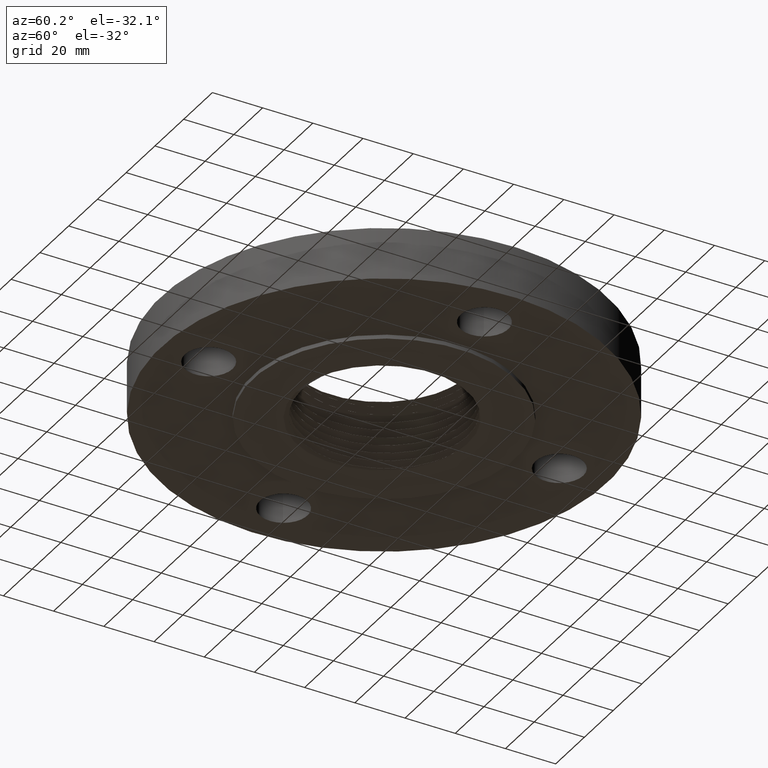
[diagram: clean part render]
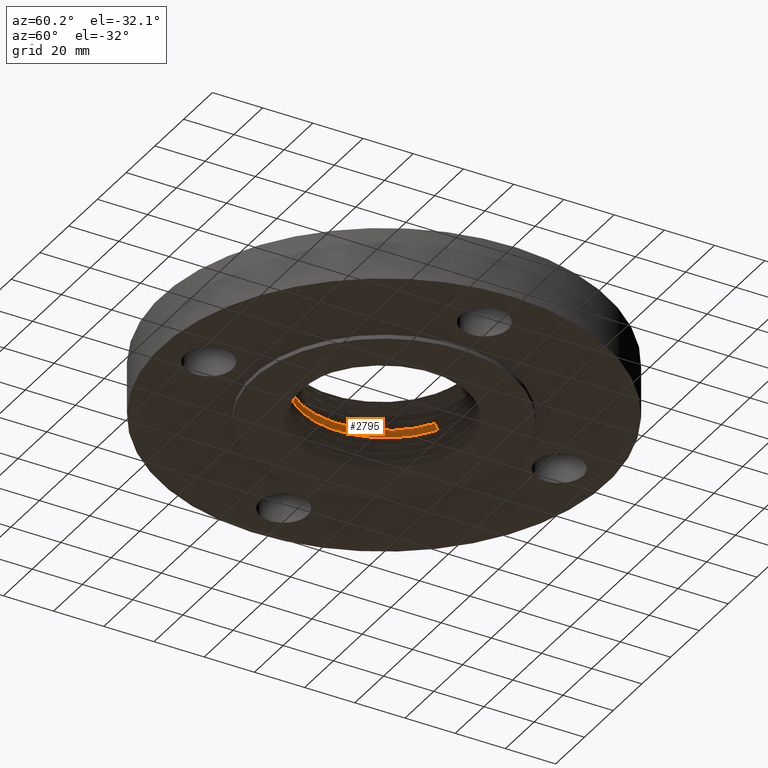
[diagram: same view with one face highlighted and labeled with its STEP entity id]
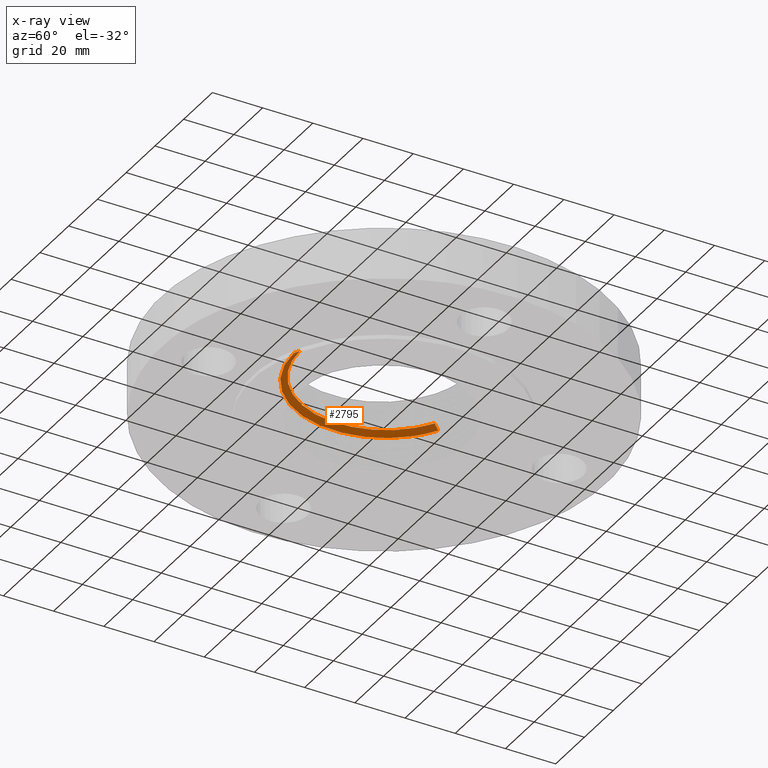
[diagram: x-ray of the same camera — body ghosted, the highlighted face saturated]
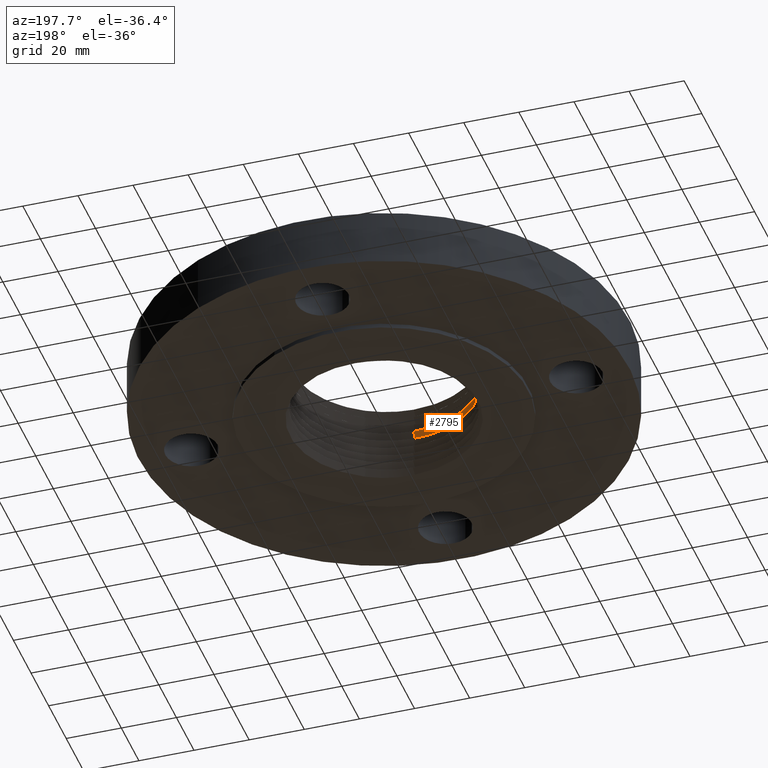
[diagram: same view with one face highlighted and labeled with its STEP entity id]
A machine part, auxiliary view. The second image highlights one B-rep face of the part: STEP entity #2795.
The next image is the same camera in x-ray: the body ghosted, the highlighted face saturated — about 22% of this face is hidden behind the body in this view.
A second angle (auxiliary view) of the same face is appended — the face is thin or edge-on in the first view.
In plain terms, the highlighted face is a freeform B-spline surface patch.
Its self-contained STEP definition (entity closure, byte-faithful):
#2568=CARTESIAN_POINT('Vertex',(-0.630495266804,1.15414180737,0.568125694855)) ;
#2577=CARTESIAN_POINT('Vertex',(-1.23193955731E-005,-1.31677252275,0.620678511132)) ;
#2581=CARTESIAN_POINT('Control Point',(-0.630507034852,1.15413538575,0.568125897654)) ;
#2582=CARTESIAN_POINT('Control Point',(-0.691328089134,1.12094601519,0.569174027407)) ;
#2583=CARTESIAN_POINT('Control Point',(-0.749964412856,1.08375067605,0.570222139983)) ;
#2584=CARTESIAN_POINT('Control Point',(-0.806353782915,1.04256762989,0.571275494122)) ;
#2585=CARTESIAN_POINT('Control Point',(-0.913544779921,0.952696767646,0.573387232895)) ;
#2586=CARTESIAN_POINT('Control Point',(-1.00791419878,0.849474354214,0.5754983099)) ;
#2587=CARTESIAN_POINT('Control Point',(-1.05146404158,0.794921086224,0.576551002271)) ;
#2588=CARTESIAN_POINT('Control Point',(-1.13063661461,0.681218752246,0.578641428166)) ;
#2589=CARTESIAN_POINT('Control Point',(-1.19425175384,0.558145596542,0.580731694866)) ;
#2590=CARTESIAN_POINT('Control Point',(-1.22222430022,0.494179842848,0.581784383536)) ;
#2591=CARTESIAN_POINT('Control Point',(-1.26959506435,0.362269849885,0.583899419875)) ;
#2592=CARTESIAN_POINT('Control Point',(-1.29910153355,0.225236149577,0.58601473647)) ;
#2593=CARTESIAN_POINT('Control Point',(-1.30916445408,0.156133696508,0.587067705397)) ;
#2594=CARTESIAN_POINT('Control Point',(-1.32022799767,0.0177372550305,0.589162412423)) ;
#2595=CARTESIAN_POINT('Control Point',(-1.31305598849,-0.120950586812,0.59125698468)) ;
#2596=CARTESIAN_POINT('Control Point',(-1.30485646666,-0.190219751979,0.592308133153)) ;
#2597=CARTESIAN_POINT('Control Point',(-1.27939744584,-0.327017705173,0.594407222367)) ;
#2598=CARTESIAN_POINT('Control Point',(-1.23619437339,-0.459289861853,0.596506249098)) ;
#2599=CARTESIAN_POINT('Control Point',(-1.21021794001,-0.524106567107,0.597558969003)) ;
#2600=CARTESIAN_POINT('Control Point',(-1.14961759524,-0.650181704689,0.59966943)) ;
#2601=CARTESIAN_POINT('Control Point',(-1.07292071728,-0.767137750498,0.601779229606)) ;
#2602=CARTESIAN_POINT('Control Point',(-1.03082525581,-0.822822603947,0.60283128812)) ;
#2603=CARTESIAN_POINT('Control Point',(-0.940224533113,-0.927651846578,0.604920479918)) ;
#2604=CARTESIAN_POINT('Control Point',(-0.836704228887,-1.01973111444,0.60700951391)) ;
#2605=CARTESIAN_POINT('Control Point',(-0.781644000305,-1.06265706448,0.608061570257)) ;
#2606=CARTESIAN_POINT('Control Point',(-0.665551898642,-1.14118942809,0.610175318006)) ;
#2607=CARTESIAN_POINT('Control Point',(-0.540080842728,-1.20369025433,0.612289343375)) ;
#2608=CARTESIAN_POINT('Control Point',(-0.475617909721,-1.23054405262,0.613341677342)) ;
#2609=CARTESIAN_POINT('Control Point',(-0.344293189412,-1.27551374016,0.615434671588)) ;
#2610=CARTESIAN_POINT('Control Point',(-0.208176236165,-1.30290548926,0.617527533924)) ;
#2611=CARTESIAN_POINT('Control Point',(-0.139064477606,-1.31211659654,0.618577584106)) ;
#2612=CARTESIAN_POINT('Control Point',(-0.0695400507005,-1.31673904575,0.619628056471)) ;
#2613=CARTESIAN_POINT('Control Point',(-1.2319395573E-005,-1.31677252275,0.620678511132)) ;
#2739=CARTESIAN_POINT('Vertex',(-9.22364402319E-007,-1.41349758295,0.555938258801)) ;
#2743=CARTESIAN_POINT('Control Point',(-9.22364402525E-007,-1.41349758295,0.555938258801)) ;
#2744=CARTESIAN_POINT('Control Point',(-1.23193955733E-005,-1.31677252275,0.620678511132)) ;
#2754=CARTESIAN_POINT('Control Point',(-9.22364401971E-007,-1.41349758295,0.555938258801)) ;
#2755=CARTESIAN_POINT('Control Point',(-1.24695084399E-005,-1.31549853518,0.621531219584)) ;
#2756=CARTESIAN_POINT('Control Point',(-0.373416137066,-1.41333310094,0.550682600984)) ;
#2757=CARTESIAN_POINT('Control Point',(-0.347538584299,-1.31533100266,0.616275561753)) ;
#2758=CARTESIAN_POINT('Control Point',(-0.746780176317,-1.28985836126,0.545426133625)) ;
#2759=CARTESIAN_POINT('Control Point',(-0.695008538477,-1.20040233796,0.611019091578)) ;
#2760=CARTESIAN_POINT('Control Point',(-1.06432758772,-1.04315826845,0.540186611587)) ;
#2761=CARTESIAN_POINT('Control Point',(-0.99052300195,-0.970797133419,0.605779571784)) ;
#2762=CARTESIAN_POINT('Control Point',(-1.48817357801,-0.380567737594,0.529670543583)) ;
#2763=CARTESIAN_POINT('Control Point',(-1.38494243898,-0.354147214519,0.595263504787)) ;
#2764=CARTESIAN_POINT('Control Point',(-1.43381054985,0.404115907705,0.519151306735)) ;
#2765=CARTESIAN_POINT('Control Point',(-1.33431796849,0.376092839181,0.584744266846)) ;
#2766=CARTESIAN_POINT('Control Point',(-1.27332512231,0.772868236072,0.513908639776)) ;
#2767=CARTESIAN_POINT('Control Point',(-1.18495244518,0.719249951788,0.579501596176)) ;
#2768=CARTESIAN_POINT('Control Point',(-1.00467457879,1.06013198905,0.508647442873)) ;
#2769=CARTESIAN_POINT('Control Point',(-0.934934597543,0.986565606372,0.574240403459)) ;
#2770=CARTESIAN_POINT('Control Point',(-0.676878685479,1.23902004899,0.503385442728)) ;
#2771=CARTESIAN_POINT('Control Point',(-0.629884340349,1.15302385693,0.568978403298)) ;
#2773=CARTESIAN_POINT('Control Point',(-9.22364401971E-007,-1.41349758295,0.555938258801)) ;
#2774=CARTESIAN_POINT('Control Point',(-0.373416137066,-1.41333310094,0.550682600984)) ;
#2775=CARTESIAN_POINT('Control Point',(-0.746780176317,-1.28985836126,0.545426133625)) ;
#2776=CARTESIAN_POINT('Control Point',(-1.06432758772,-1.04315826845,0.540186611587)) ;
#2777=CARTESIAN_POINT('Control Point',(-1.48817357801,-0.380567737594,0.529670543583)) ;
#2778=CARTESIAN_POINT('Control Point',(-1.43381054985,0.404115907705,0.519151306735)) ;
#2779=CARTESIAN_POINT('Control Point',(-1.27332512231,0.772868236072,0.513908639776)) ;
#2780=CARTESIAN_POINT('Control Point',(-1.00467457879,1.06013198905,0.508647442873)) ;
#2781=CARTESIAN_POINT('Control Point',(-0.676878685479,1.23902004899,0.503385442728)) ;
#2782=CARTESIAN_POINT('Vertex',(-0.676878685479,1.23902004899,0.503385442728)) ;
#2786=CARTESIAN_POINT('Control Point',(-0.676878685479,1.23902004899,0.503385442728)) ;
#2787=CARTESIAN_POINT('Control Point',(-0.630495266804,1.15414180737,0.568125694855)) ;
#2790=ORIENTED_EDGE('',*,*,#2745,.T.) ;
#2791=ORIENTED_EDGE('',*,*,#2784,.T.) ;
#2792=ORIENTED_EDGE('',*,*,#2788,.F.) ;
#2793=ORIENTED_EDGE('',*,*,#2614,.T.) ;
#2795=ADVANCED_FACE('PartBody',(#2794),#2753,.T.) ;
#2580=B_SPLINE_CURVE_WITH_KNOTS('',5,(#2581,#2582,#2583,#2584,#2585,#2586,#2587,#2588,#2589,#2590,#2591,#2592,#2593,#2594,#2595,#2596,#2597,#2598,#2599,#2600,#2601,#2602,#2603,#2604,#2605,#2606,#2607,#2608,#2609,#2610,#2611,#2612,#2613),.UNSPECIFIED.,.F.,.U.,(6,3,3,3,3,3,3,3,3,3,6),(0.,12.8790186903,25.7580373806,38.5879060348,51.4177746889,64.3427819547,77.2179860574,90.0931901602,102.919399819,115.745609477,128.660989809),.UNSPECIFIED.) ;
#2742=B_SPLINE_CURVE_WITH_KNOTS('',1,(#2743,#2744),.UNSPECIFIED.,.F.,.U.,(2,2),(-1.49764450472,1.45870574931),.UNSPECIFIED.) ;
#2772=B_SPLINE_CURVE_WITH_KNOTS('',5,(#2773,#2774,#2775,#2776,#2777,#2778,#2779,#2780,#2781),.UNSPECIFIED.,.F.,.U.,(6,3,6),(0.,45.7826303448,91.5653869298),.UNSPECIFIED.) ;
#2785=B_SPLINE_CURVE_WITH_KNOTS('',1,(#2786,#2787),.UNSPECIFIED.,.F.,.U.,(2,2),(-1.49764450472,1.45870574963),.UNSPECIFIED.) ;
#2753=B_SPLINE_SURFACE_WITH_KNOTS('',5,1,((#2754,#2755),(#2756,#2757),(#2758,#2759),(#2760,#2761),(#2762,#2763),(#2764,#2765),(#2766,#2767),(#2768,#2769),(#2770,#2771)),.UNSPECIFIED.,.F.,.F.,.U.,(6,3,6),(2,2),(0.,45.7826303448,91.5653869298),(-1.49764450472,1.49764450472),.UNSPECIFIED.) ;
#2614=EDGE_CURVE('',#2569,#2578,#2580,.T.) ;
#2745=EDGE_CURVE('',#2578,#2740,#2742,.F.) ;
#2784=EDGE_CURVE('',#2740,#2783,#2772,.T.) ;
#2788=EDGE_CURVE('',#2569,#2783,#2785,.F.) ;
#2789=EDGE_LOOP('',(#2790,#2791,#2792,#2793)) ;
#2794=FACE_OUTER_BOUND('',#2789,.T.) ;
#2569=VERTEX_POINT('',#2568) ;
#2578=VERTEX_POINT('',#2577) ;
#2740=VERTEX_POINT('',#2739) ;
#2783=VERTEX_POINT('',#2782) ;